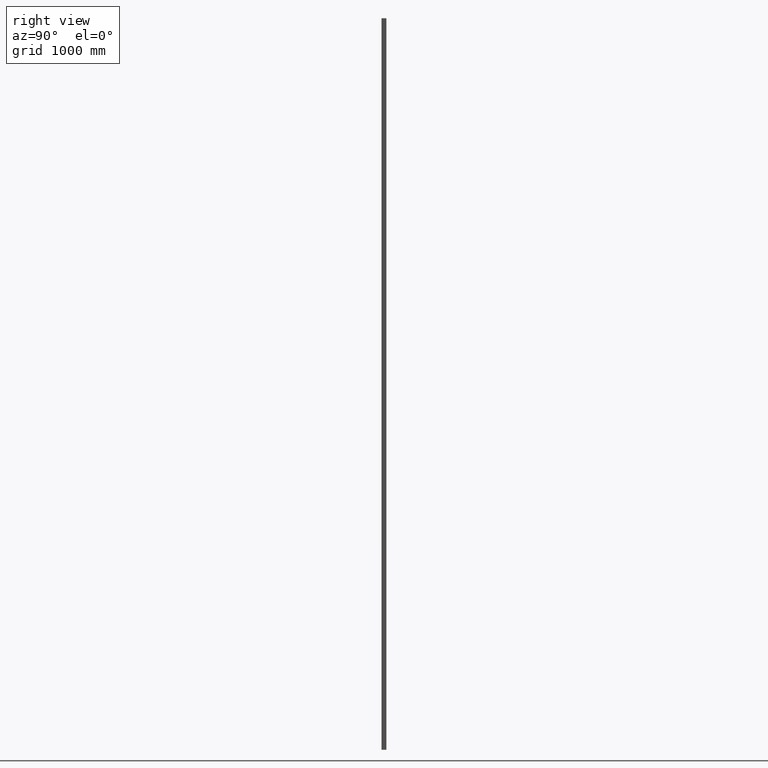
[diagram: clean part render]
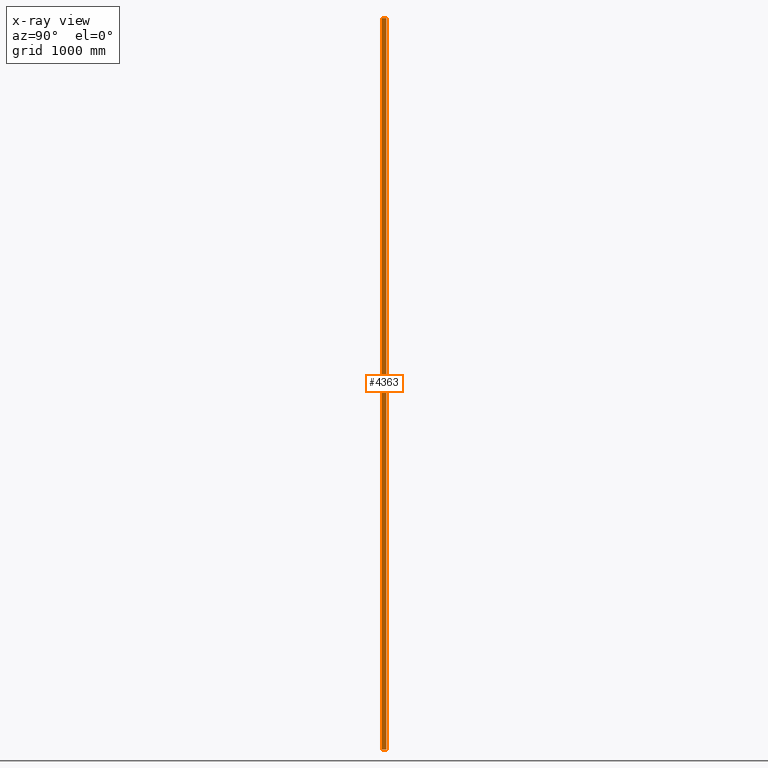
[diagram: x-ray — body ghosted, one internal face saturated and labeled with its STEP entity id]
A machine part, right view, then the same camera in x-ray: the body is ghosted and one INTERNAL B-rep face — a face not visible from any outside direction — is saturated and labeled: STEP entity #4363.
In plain terms, the highlighted planar face has unit normal (1, 0, -0).
Its self-contained STEP definition (entity closure, byte-faithful):
#189 = VECTOR ( 'NONE', #13935, 1000.000000000000000 ) ;
#217 = DIRECTION ( 'NONE',  ( -0.000000000000000000, -0.000000000000000000, -1.000000000000000000 ) ) ;
#282 = EDGE_CURVE ( 'NONE', #12853, #2659, #4507, .T. ) ;
#941 = ORIENTED_EDGE ( 'NONE', *, *, #5105, .T. ) ;
#1049 = VECTOR ( 'NONE', #217, 1000.000000000000000 ) ;
#2040 = DIRECTION ( 'NONE',  ( -9.637352644315594010E-17, 1.000000000000000000, 0.000000000000000000 ) ) ;
#2213 = CARTESIAN_POINT ( 'NONE',  ( -18.50000000000001066, 18.00000000000001066, -3000.000000000000000 ) ) ;
#2659 = VERTEX_POINT ( 'NONE', #5081 ) ;
#3153 = CARTESIAN_POINT ( 'NONE',  ( -18.50000000000001066, 18.00000000000001066, 3000.000000000000000 ) ) ;
#4363 = ADVANCED_FACE ( 'NONE', ( #12512 ), #12970, .T. ) ;
#4507 = LINE ( 'NONE', #8342, #4884 ) ;
#4762 = EDGE_CURVE ( 'NONE', #13371, #12853, #7472, .T. ) ;
#4884 = VECTOR ( 'NONE', #12184, 1000.000000000000000 ) ;
#5060 = LINE ( 'NONE', #7477, #1049 ) ;
#5081 = CARTESIAN_POINT ( 'NONE',  ( -18.50000000000000711, -17.99999999999999645, -3000.000000000000000 ) ) ;
#5105 = EDGE_CURVE ( 'NONE', #13371, #12237, #14752, .T. ) ;
#5382 = CARTESIAN_POINT ( 'NONE',  ( -18.50000000000000711, -17.99999999999999645, 3000.000000000000000 ) ) ;
#5885 = ORIENTED_EDGE ( 'NONE', *, *, #14150, .T. ) ;
#7472 = LINE ( 'NONE', #14334, #14009 ) ;
#7477 = CARTESIAN_POINT ( 'NONE',  ( -18.50000000000000711, -17.99999999999999645, 3000.000000000000000 ) ) ;
#7592 = ORIENTED_EDGE ( 'NONE', *, *, #282, .F. ) ;
#8218 = DIRECTION ( 'NONE',  ( -0.000000000000000000, -0.000000000000000000, -1.000000000000000000 ) ) ;
#8342 = CARTESIAN_POINT ( 'NONE',  ( -18.50000000000001066, 18.00000000000001066, -3000.000000000000000 ) ) ;
#8926 = AXIS2_PLACEMENT_3D ( 'NONE', #11612, #10528, #2040 ) ;
#10437 = ORIENTED_EDGE ( 'NONE', *, *, #4762, .F. ) ;
#10528 = DIRECTION ( 'NONE',  ( 1.000000000000000000, 9.637352644315594010E-17, -0.000000000000000000 ) ) ;
#11612 = CARTESIAN_POINT ( 'NONE',  ( -18.50000000000001066, 18.00000000000001066, 3000.000000000000000 ) ) ;
#12184 = DIRECTION ( 'NONE',  ( 9.637352644315594010E-17, -1.000000000000000000, 0.000000000000000000 ) ) ;
#12237 = VERTEX_POINT ( 'NONE', #5382 ) ;
#12512 = FACE_OUTER_BOUND ( 'NONE', #15840, .T. ) ;
#12758 = CARTESIAN_POINT ( 'NONE',  ( -18.50000000000001066, 18.00000000000001066, 3000.000000000000000 ) ) ;
#12853 = VERTEX_POINT ( 'NONE', #2213 ) ;
#12970 = PLANE ( 'NONE',  #8926 ) ;
#13371 = VERTEX_POINT ( 'NONE', #3153 ) ;
#13935 = DIRECTION ( 'NONE',  ( 9.637352644315594010E-17, -1.000000000000000000, 0.000000000000000000 ) ) ;
#14009 = VECTOR ( 'NONE', #8218, 1000.000000000000000 ) ;
#14150 = EDGE_CURVE ( 'NONE', #12237, #2659, #5060, .T. ) ;
#14334 = CARTESIAN_POINT ( 'NONE',  ( -18.50000000000001066, 18.00000000000001066, 3000.000000000000000 ) ) ;
#14752 = LINE ( 'NONE', #12758, #189 ) ;
#15840 = EDGE_LOOP ( 'NONE', ( #7592, #10437, #941, #5885 ) ) ;